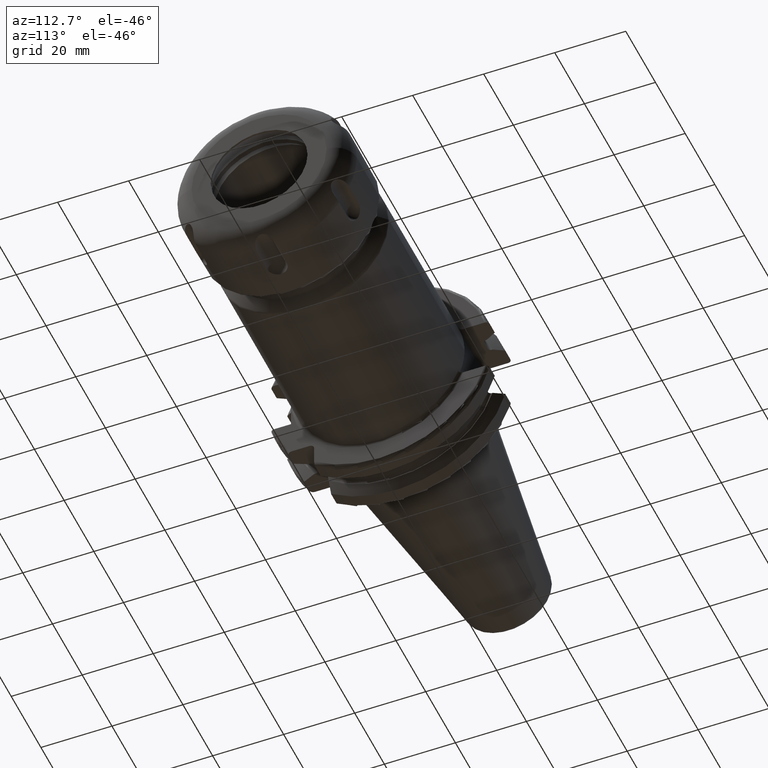
[diagram: clean part render]
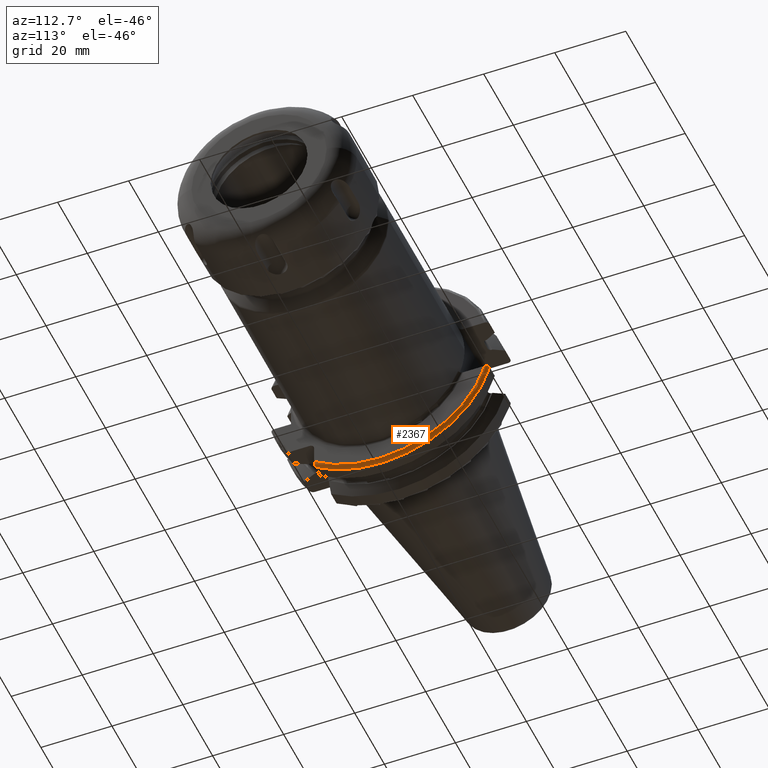
[diagram: same view with one face highlighted and labeled with its STEP entity id]
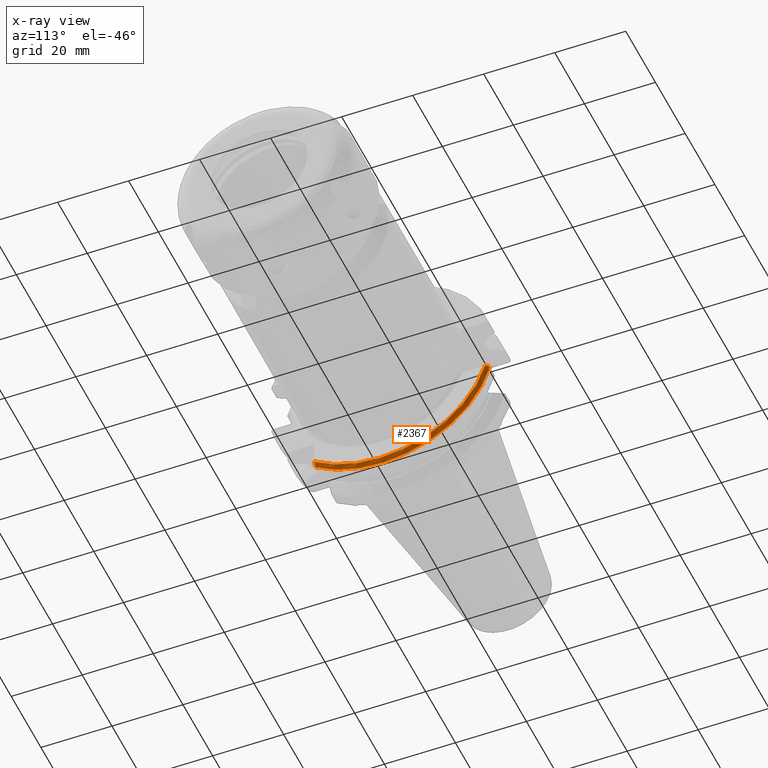
[diagram: x-ray of the same camera — body ghosted, the highlighted face saturated]
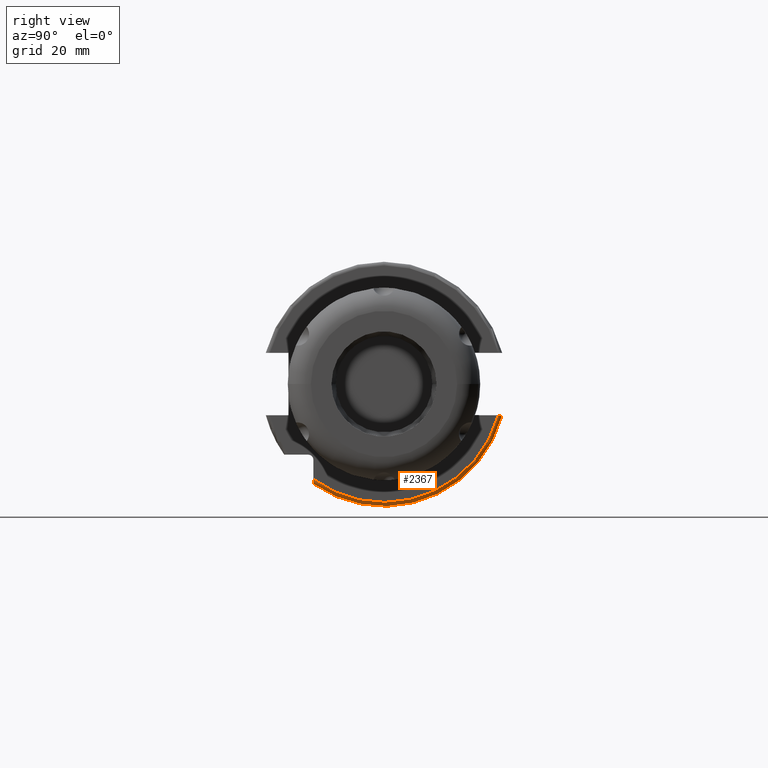
[diagram: same view with one face highlighted and labeled with its STEP entity id]
A machine part, auxiliary view. The second image highlights one B-rep face of the part: STEP entity #2367.
The next image is the same camera in x-ray: the body ghosted, the highlighted face saturated — about 0% of this face is hidden behind the body in this view.
A second angle (right view) of the same face is appended — the face is thin or edge-on in the first view.
In plain terms, the highlighted toroidal blend (fillet) surface has major radius 30.7625 mm and minor (blend) radius 1 mm.
Its self-contained STEP definition (entity closure, byte-faithful):
#580=CARTESIAN_POINT('',(1.805E1,3.071231684927E1,-8.1E0));
#581=CARTESIAN_POINT('',(1.812702529647E1,3.071231684927E1,-8.1E0));
#582=CARTESIAN_POINT('',(1.827656518037E1,3.069444719907E1,-8.1E0));
#583=CARTESIAN_POINT('',(1.849273698584E1,3.061544862934E1,-8.1E0));
#584=CARTESIAN_POINT('',(1.868460186607E1,3.048863686818E1,-8.1E0));
#585=CARTESIAN_POINT('',(1.884263679922E1,3.032251203229E1,-8.1E0));
#586=CARTESIAN_POINT('',(1.896052984725E1,3.012566774399E1,-8.1E0));
#587=CARTESIAN_POINT('',(1.903334281973E1,2.990707436768E1,-8.1E0));
#588=CARTESIAN_POINT('',(1.905E1,2.975515277820E1,-8.1E0));
#589=CARTESIAN_POINT('',(1.905E1,2.967695075728E1,-8.1E0));
#591=CARTESIAN_POINT('',(1.905E1,-1.835E1,-2.469025933946E1));
#592=CARTESIAN_POINT('',(1.905E1,-1.835E1,-2.477827489148E1));
#593=CARTESIAN_POINT('',(1.903550352933E1,-1.835E1,-2.495194722121E1));
#594=CARTESIAN_POINT('',(1.896629632127E1,-1.835E1,-2.521302960336E1));
#595=CARTESIAN_POINT('',(1.884964259244E1,-1.835E1,-2.545175760021E1));
#596=CARTESIAN_POINT('',(1.869337393206E1,-1.835E1,-2.565125079223E1));
#597=CARTESIAN_POINT('',(1.850440420446E1,-1.835E1,-2.580344847600E1));
#598=CARTESIAN_POINT('',(1.828893233655E1,-1.835E1,-2.590127687802E1));
#599=CARTESIAN_POINT('',(1.813210111876E1,-1.835E1,-2.592554543785E1));
#600=CARTESIAN_POINT('',(1.805E1,-1.835E1,-2.592554543785E1));
#602=CARTESIAN_POINT('',(1.905E1,0.E0,0.E0));
#603=DIRECTION('',(-1.E0,0.E0,0.E0));
#604=DIRECTION('',(0.E0,9.647119303464E-1,-2.633075985372E-1));
#605=AXIS2_PLACEMENT_3D('',#602,#603,#604);
#660=CARTESIAN_POINT('',(1.805E1,0.E0,0.E0));
#661=DIRECTION('',(-1.E0,0.E0,0.E0));
#662=DIRECTION('',(0.E0,9.669363825036E-1,-2.550177095632E-1));
#663=AXIS2_PLACEMENT_3D('',#660,#661,#662);
#1487=CARTESIAN_POINT('',(1.805E1,3.071231684927E1,-8.1E0));
#1488=VERTEX_POINT('',#1487);
#1495=VERTEX_POINT('',#589);
#1504=CARTESIAN_POINT('',(1.905E1,-1.835E1,-2.469025933946E1));
#1505=VERTEX_POINT('',#1504);
#1506=CARTESIAN_POINT('',(1.805E1,-1.835E1,-2.592554543785E1));
#1507=VERTEX_POINT('',#1506);
#2355=CARTESIAN_POINT('',(1.805E1,0.E0,0.E0));
#2356=DIRECTION('',(1.E0,0.E0,0.E0));
#2357=DIRECTION('',(0.E0,-1.E0,0.E0));
#2358=AXIS2_PLACEMENT_3D('',#2355,#2356,#2357);
#2359=TOROIDAL_SURFACE('',#2358,3.07625E1,1.E0);
#2360=ORIENTED_EDGE('',*,*,#1911,.F.);
#2362=ORIENTED_EDGE('',*,*,#2361,.T.);
#2363=ORIENTED_EDGE('',*,*,#2330,.F.);
#2364=ORIENTED_EDGE('',*,*,#1924,.F.);
#2365=EDGE_LOOP('',(#2360,#2362,#2363,#2364));
#2366=FACE_OUTER_BOUND('',#2365,.F.);
#2367=ADVANCED_FACE('',(#2366),#2359,.T.);
#590=B_SPLINE_CURVE_WITH_KNOTS('',3,(#580,#581,#582,#583,#584,#585,#586,#587,
#588,#589),.UNSPECIFIED.,.F.,.F.,(4,1,1,1,1,1,1,4),(0.E0,1.428571428571E-1,
2.857142857143E-1,4.285714285714E-1,5.714285714286E-1,7.142857142857E-1,
8.571428571429E-1,1.E0),.UNSPECIFIED.);
#601=B_SPLINE_CURVE_WITH_KNOTS('',3,(#591,#592,#593,#594,#595,#596,#597,#598,
#599,#600),.UNSPECIFIED.,.F.,.F.,(4,1,1,1,1,1,1,4),(0.E0,1.428571428571E-1,
2.857142857143E-1,4.285714285714E-1,5.714285714286E-1,7.142857142857E-1,
8.571428571429E-1,1.E0),.UNSPECIFIED.);
#606=CIRCLE('',#605,3.07625E1);
#664=CIRCLE('',#663,3.17625E1);
#1911=EDGE_CURVE('',#1488,#1495,#590,.T.);
#1924=EDGE_CURVE('',#1495,#1505,#606,.T.);
#2330=EDGE_CURVE('',#1505,#1507,#601,.T.);
#2361=EDGE_CURVE('',#1488,#1507,#664,.T.);